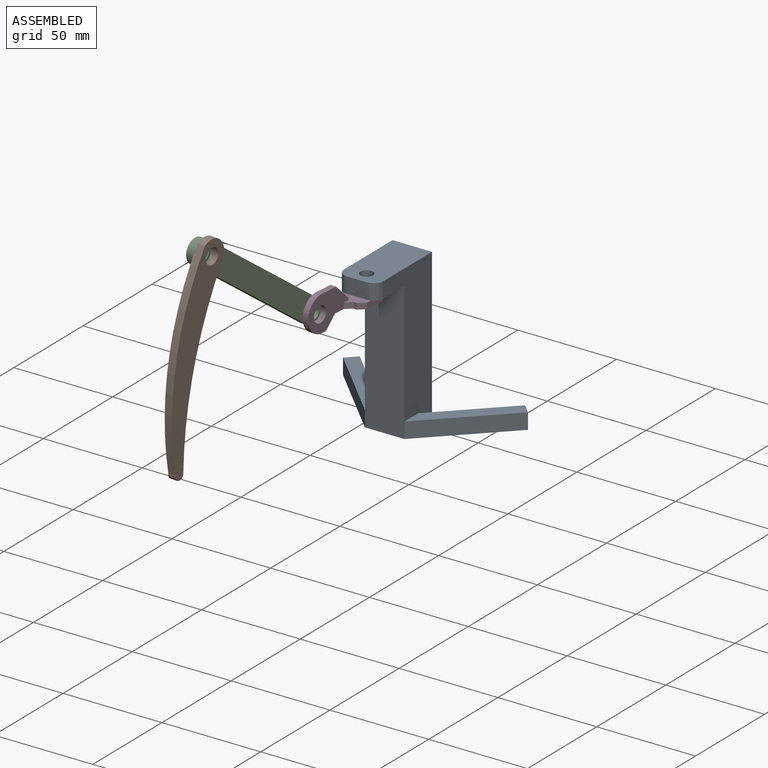
[diagram: assembled view]
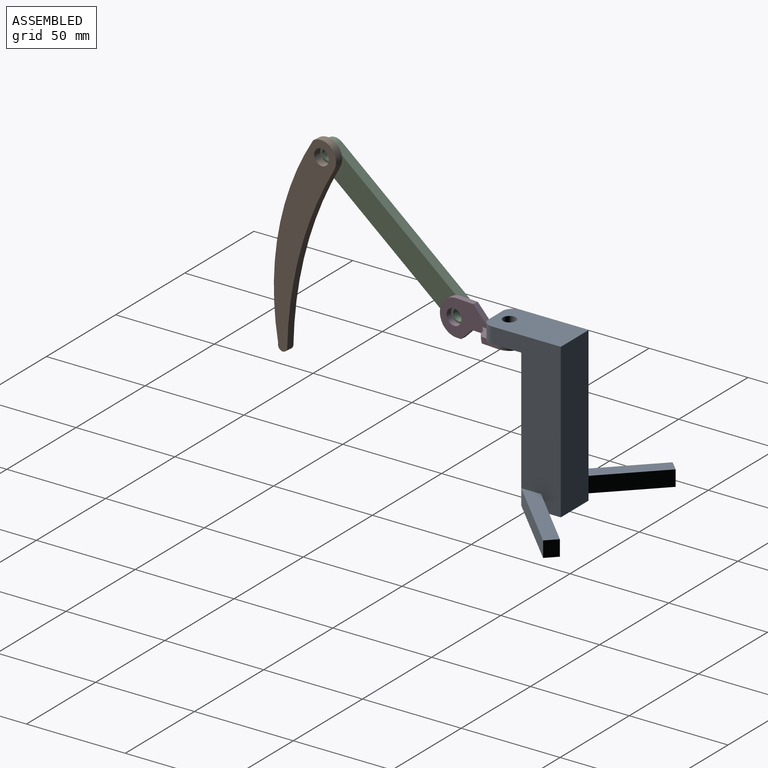
[diagram: assembled view, second angle]
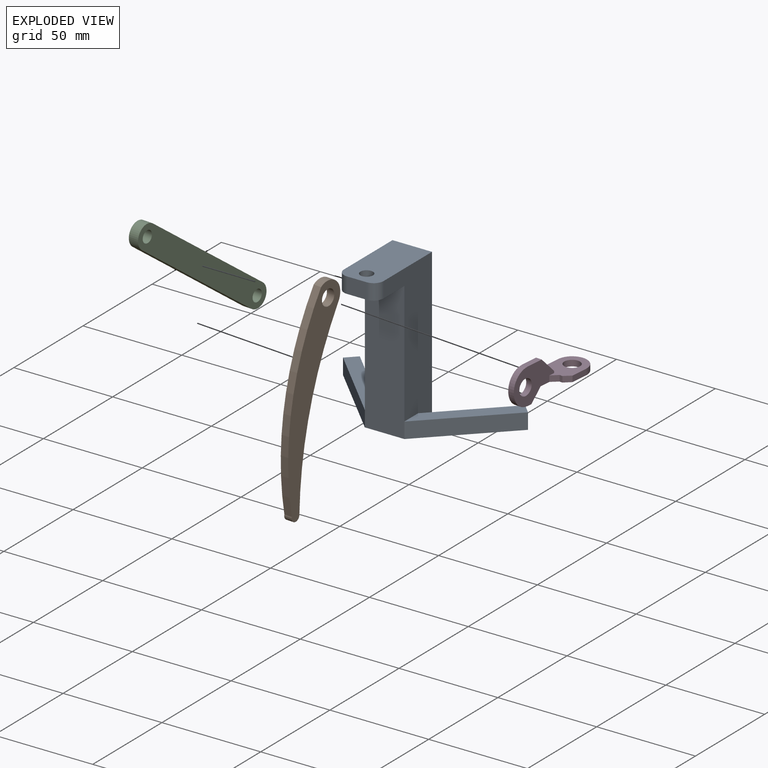
[diagram: exploded view]
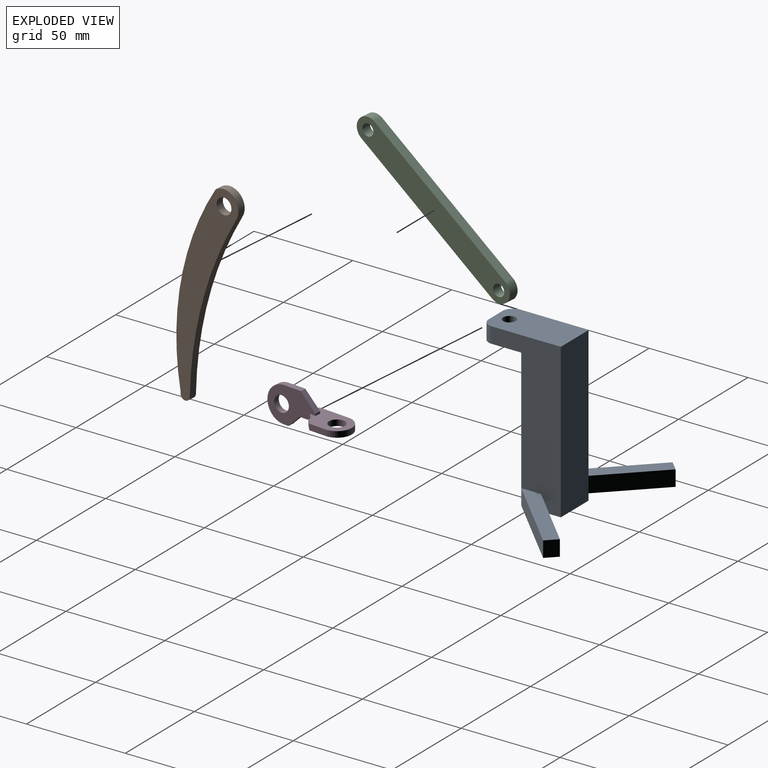
[diagram: exploded view, second angle]
ASSEMBLY  parts=4 mates=3
PART A: 19 faces, bbox 93.6x61.8x78 mm
  f0: plane 70x20mm, normal (0,-1,0), area 1400mm2, adj f3,f5,f8,f9,f12,f17
  f1: plane 41.82x36.82mm, normal (0,0,1), area 343.2mm2, adj f2,f3,f9,f10
  f2: plane 31.82x31.82mm, normal (-0.71,0.71,0), area 360mm2, adj f1,f3,f10,f12
  f3: plane 78x35mm, normal (1,0,0), area 1600mm2, adj f0,f1,f2,f4,f12,f13,f16,f17
  f4: plane 78x20mm, normal (0,1,0), area 1560mm2, adj f3,f5,f12,f13
  f5: plane 78x35mm, normal (-1,0,0), area 1600mm2, adj f0,f4,f6,f11,f12,f13,f14,f17
  f6: plane 31.82x31.82mm, normal (0.71,0.71,0), area 360mm2, adj f5,f7,f11,f12
  f7: plane 8x5mm, normal (-0.71,0.71,0), area 56.6mm2, adj f6,f8,f11,f12
  f8: plane 36.82x36.82mm, normal (-0.71,-0.71,0), area 416.6mm2, adj f0,f7,f11,f12
  f9: plane 36.82x36.82mm, normal (0.71,-0.71,0), area 416.6mm2, adj f0,f1,f10,f12
  f10: plane 8x5mm, normal (0.71,0.71,0), area 56.6mm2, adj f1,f2,f9,f12
  f11: plane 41.82x36.82mm, normal (0,0,1), area 343.2mm2, adj f5,f6,f7,f8
  f12: plane 93.64x41.82mm, normal (0,0,-1), area 1086.4mm2, adj f0,f2,f3,f4,f5,f6,f7,f8
  f13: plane 40x20mm, normal (0,0,1), area 757.1mm2, adj f3,f4,f5,f14,f15,f16,f18
  f14: cylinder r=5mm len=8mm, axis (0,0,1), area 62.8mm2, adj f5,f13,f15,f17
  f15: plane 10x8mm, normal (0,-1,0), area 80mm2, adj f13,f14,f16,f17
  f16: cylinder r=5mm len=8mm, axis (0,0,1), area 62.8mm2, adj f3,f13,f15,f17
  f17: plane 20x20mm, normal (0,0,-1), area 357.1mm2, adj f0,f3,f5,f14,f15,f16,f18
  f18: cylinder r=3.2mm len=8mm, axis (0,0,1), area 160.8mm2, adj f13,f17
PART B: 7 faces, bbox 21.6x105.3x4 mm
  f0: cylinder r=2.5mm len=5mm, axis (0,0,-1), area 34mm2, adj f1,f3,f5,f6
  f1: cylinder r=183.12mm len=91.87mm, axis (0,0,-1), area 372mm2, adj f0,f2,f5,f6
  f2: cylinder r=7.84mm len=13.69mm, axis (0,0,-1), area 86.1mm2, adj f1,f3,f5,f6
  f3: cylinder r=136.9mm len=100.15mm, axis (0,0,-1), area 410.4mm2, adj f0,f2,f5,f6
  f4: cylinder r=4mm len=8mm, axis (0,0,-1), area 100.5mm2, adj f5,f6
  f5: plane 105.34x21.58mm, normal (0,0,1), area 1187.6mm2, adj f0,f1,f2,f3,f4
  f6: plane 105.34x21.58mm, normal (0,0,-1), area 1187.6mm2, adj f0,f1,f2,f3,f4
PART C: 8 faces, bbox 12x100x5 mm
  f0: plane 88x5mm, normal (1,0,0), area 440mm2, adj f1,f3,f6,f7
  f1: cylinder r=6mm len=12mm, axis (0,0,-1), area 94.2mm2, adj f0,f2,f6,f7
  f2: plane 88x5mm, normal (-1,0,0), area 440mm2, adj f1,f3,f6,f7
  f3: cylinder r=6mm len=12mm, axis (0,0,-1), area 94.2mm2, adj f0,f2,f6,f7
  f4: cylinder r=3mm len=6mm, axis (0,0,-1), area 94.2mm2, adj f6,f7
  f5: cylinder r=3mm len=6mm, axis (0,0,-1), area 94.2mm2, adj f6,f7
  f6: plane 100x12mm, normal (0,0,1), area 1112.5mm2, adj f0,f1,f2,f3,f4,f5
  f7: plane 100x12mm, normal (0,0,-1), area 1112.5mm2, adj f0,f1,f2,f3,f4,f5
PART D: 21 faces, bbox 15x45.2x18 mm
  f0: plane 8.68x3mm, normal (1,0,0), area 26mm2, adj f1,f4,f5,f18
  f1: cylinder r=7.5mm len=15mm, axis (0,0,-1), area 70.7mm2, adj f0,f2,f4,f5
  f2: plane 15.3x3mm, normal (-1,0,0), area 45.9mm2, adj f1,f4,f5,f14
  f3: cylinder r=4mm len=8mm, axis (0,0,-1), area 75.4mm2, adj f4,f5
  f4: plane 27.3x15mm, normal (0,0,1), area 239.7mm2, adj f0,f1,f2,f3,f6,f7,f8,f14
  f5: plane 27.77x15mm, normal (0,0,-1), area 265.5mm2, adj f0,f1,f2,f3,f6,f8,f14,f16
  f6: plane 26x18mm, normal (1,0,0), area 272.7mm2, adj f4,f5,f7,f9,f10,f11,f12,f13
  f7: plane 3x1mm, normal (0,1,0), area 3mm2, adj f4,f6,f8,f15
  f8: plane 26x18mm, normal (-1,0,0), area 257.3mm2, adj f4,f5,f7,f9,f10,f11,f12,f13
  f9: plane 3x0.14mm, normal (0,-1,0), area 0.4mm2, adj f6,f8,f12,f13
  f10: plane 9.07x3mm, normal (0,0,1), area 27.2mm2, adj f6,f8,f13,f15
  f11: plane 3x2.45mm, normal (0,0,-1), area 7.3mm2, adj f6,f8,f12,f19
  f12: cylinder r=8.93mm len=8.93mm, axis (1,0,0), area 42.1mm2, adj f6,f8,f9,f11
  f13: cylinder r=8.93mm len=8.93mm, axis (-1,0,0), area 42.1mm2, adj f6,f8,f9,f10
  f14: plane 4.5x4.5mm, normal (-0.71,-0.71,0), area 19.1mm2, adj f2,f4,f5,f8
  f15: plane 8x8mm, normal (0,0.71,0.71), area 33.9mm2, adj f6,f7,f8,f10
  f16: plane 3x1.5mm, normal (0,-1,0), area 4.5mm2, adj f4,f5,f17,f18
  f17: plane 3x3mm, normal (0.71,-0.71,0), area 12.7mm2, adj f4,f5,f6,f16
  f18: plane 3x3mm, normal (0.71,-0.71,0), area 12.7mm2, adj f0,f4,f5,f16
  f19: plane 6x6mm, normal (0,0.71,-0.71), area 25.5mm2, adj f5,f6,f8,f11
  f20: cylinder r=4mm len=8mm, axis (1,0,0), area 75.4mm2, adj f6,f8
PLACE A t=(0,-7.63,0)mm
PLACE B rot(axis=(0.57,0.65,0.51),110.3deg) t=(-8.53,-93.68,132.75)mm
PLACE C rot(axis=(-0.25,0.91,-0.33),97.2deg) t=(-12.79,-84.97,18.95)mm
PLACE D rot(axis=(0,0,-1),5deg) t=(2,-7.73,67)mm
MATE revolute C.f1 <-> D.f20  axis (1,-0.09,0) through (-5.61,-60.27,70)mm
MATE revolute D.f1 <-> A.f18  axis (0,0,-1) through (0,-30.61,70)mm
MATE revolute C.f3 <-> B.f2  axis (1,-0.09,0) through (-11.78,-130.85,122.2)mm
